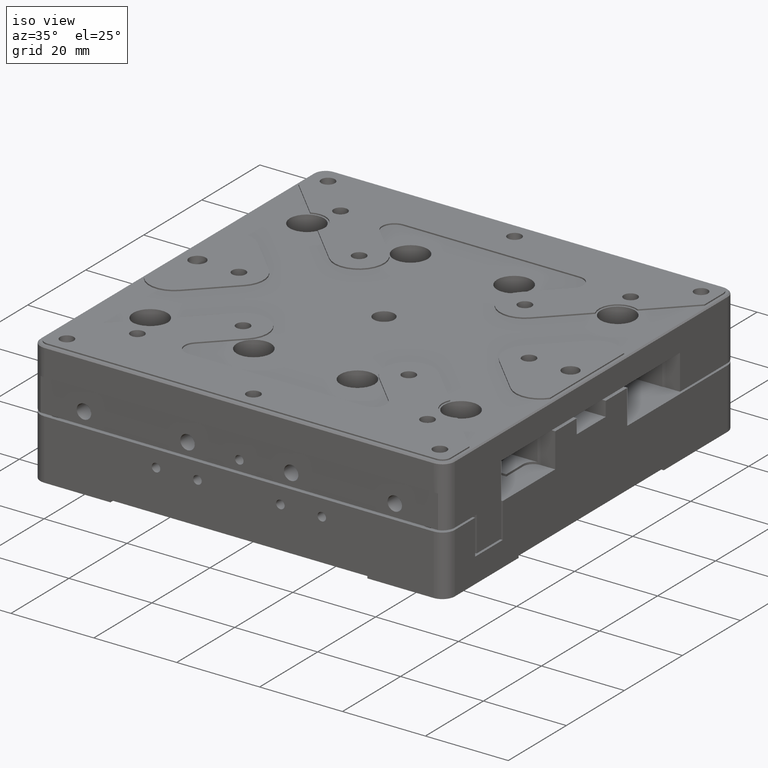
[diagram: clean part render]
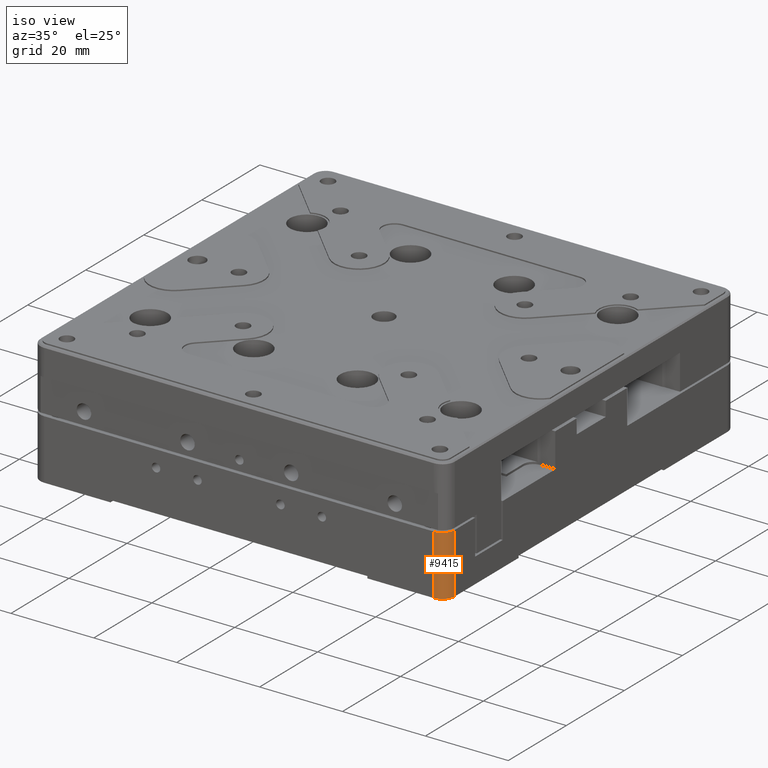
[diagram: same view with one face highlighted and labeled with its STEP entity id]
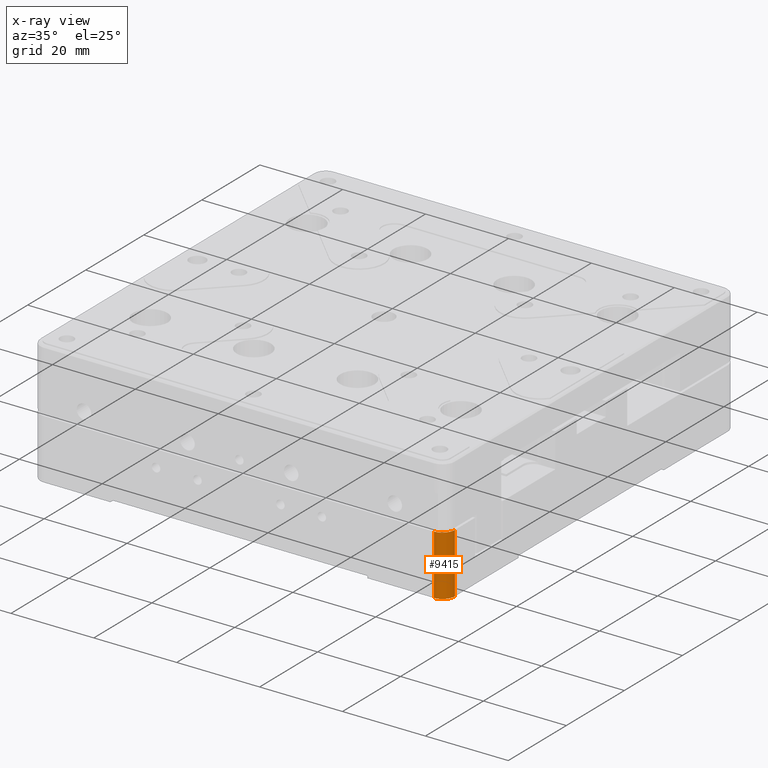
[diagram: x-ray of the same camera — body ghosted, the highlighted face saturated]
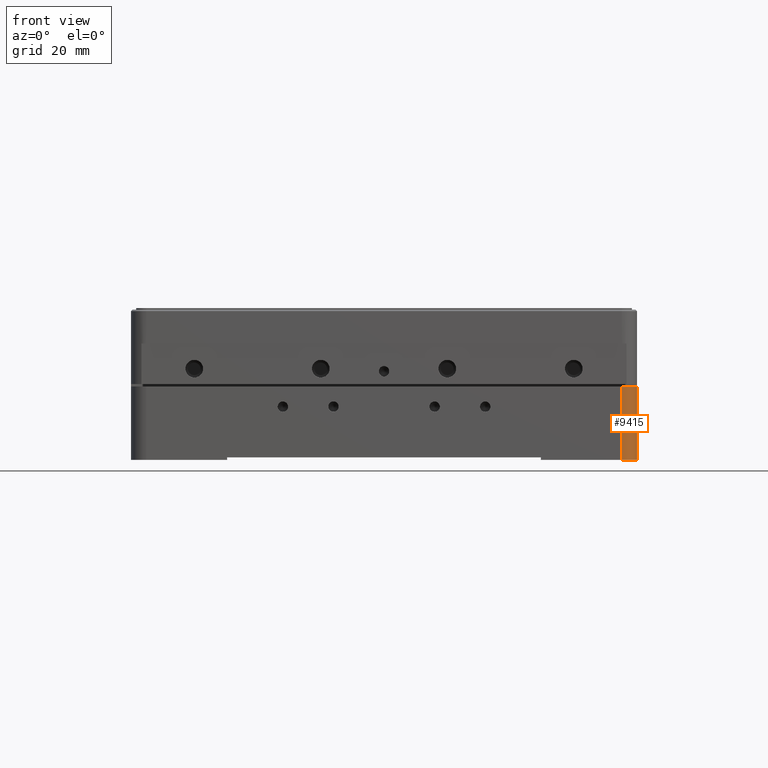
[diagram: same view with one face highlighted and labeled with its STEP entity id]
A machine part, iso view. The second image highlights one B-rep face of the part: STEP entity #9415.
The next image is the same camera in x-ray: the body ghosted, the highlighted face saturated — about 0% of this face is hidden behind the body in this view.
A second angle (front view) of the same face is appended — the face is thin or edge-on in the first view.
In plain terms, the highlighted cylindrical surface (edge-blend (fillet) strip) has radius 3 mm, axis along (0, 0, -1).
Its self-contained STEP definition (entity closure, byte-faithful):
#246 = VERTEX_POINT ( 'NONE', #11442 ) ;
#550 = CIRCLE ( 'NONE', #2385, 3.000000000000002665 ) ;
#1770 = EDGE_CURVE ( 'NONE', #6168, #10783, #12100, .T. ) ;
#2385 = AXIS2_PLACEMENT_3D ( 'NONE', #14309, #2960, #5366 ) ;
#2960 = DIRECTION ( 'NONE',  ( -0.000000000000000000, -0.000000000000000000, 1.000000000000000000 ) ) ;
#3428 = VECTOR ( 'NONE', #6328, 1000.000000000000000 ) ;
#3430 = ORIENTED_EDGE ( 'NONE', *, *, #1770, .F. ) ;
#4450 = ORIENTED_EDGE ( 'NONE', *, *, #9154, .F. ) ;
#4929 = CARTESIAN_POINT ( 'NONE',  ( 47.00000000000000000, -47.00000000000000000, 38.02208000000000965 ) ) ;
#5039 = CARTESIAN_POINT ( 'NONE',  ( 47.00000000000000000, -50.00000000000000000, -14.49999999999999822 ) ) ;
#5205 = ORIENTED_EDGE ( 'NONE', *, *, #15540, .F. ) ;
#5366 = DIRECTION ( 'NONE',  ( -1.000000000000000000, 0.000000000000000000, 0.000000000000000000 ) ) ;
#5765 = DIRECTION ( 'NONE',  ( -1.000000000000000000, 0.000000000000000000, 0.000000000000000000 ) ) ;
#5920 = FACE_OUTER_BOUND ( 'NONE', #15753, .T. ) ;
#6010 = DIRECTION ( 'NONE',  ( -1.000000000000000000, 0.000000000000000000, 0.000000000000000000 ) ) ;
#6168 = VERTEX_POINT ( 'NONE', #5039 ) ;
#6328 = DIRECTION ( 'NONE',  ( 0.000000000000000000, 0.000000000000000000, -1.000000000000000000 ) ) ;
#6783 = CARTESIAN_POINT ( 'NONE',  ( 50.00000000000000000, -47.00000000000000000, -14.49999999999999822 ) ) ;
#7139 = CIRCLE ( 'NONE', #13220, 3.000000000000002665 ) ;
#7304 = DIRECTION ( 'NONE',  ( -0.000000000000000000, 0.000000000000000000, 1.000000000000000000 ) ) ;
#7409 = CARTESIAN_POINT ( 'NONE',  ( 50.00000000000000000, -47.00000000000000000, 0.000000000000000000 ) ) ;
#7848 = VECTOR ( 'NONE', #7304, 1000.000000000000000 ) ;
#9044 = EDGE_CURVE ( 'NONE', #6168, #11530, #550, .T. ) ;
#9154 = EDGE_CURVE ( 'NONE', #10783, #246, #7139, .T. ) ;
#9415 = ADVANCED_FACE ( 'NONE', ( #5920 ), #10970, .T. ) ;
#9977 = DIRECTION ( 'NONE',  ( 0.000000000000000000, 0.000000000000000000, -1.000000000000000000 ) ) ;
#10480 = CARTESIAN_POINT ( 'NONE',  ( 47.00000000000000000, -50.00000000000000000, 0.000000000000000000 ) ) ;
#10783 = VERTEX_POINT ( 'NONE', #11024 ) ;
#10970 = CYLINDRICAL_SURFACE ( 'NONE', #15034, 3.000000000000002665 ) ;
#11024 = CARTESIAN_POINT ( 'NONE',  ( 47.00000000000000000, -50.00000000000000000, 0.000000000000000000 ) ) ;
#11442 = CARTESIAN_POINT ( 'NONE',  ( 50.00000000000000000, -47.00000000000000000, 0.000000000000000000 ) ) ;
#11530 = VERTEX_POINT ( 'NONE', #6783 ) ;
#12100 = LINE ( 'NONE', #10480, #7848 ) ;
#12615 = LINE ( 'NONE', #7409, #3428 ) ;
#13135 = DIRECTION ( 'NONE',  ( -0.000000000000000000, -0.000000000000000000, 1.000000000000000000 ) ) ;
#13220 = AXIS2_PLACEMENT_3D ( 'NONE', #15779, #13135, #5765 ) ;
#14309 = CARTESIAN_POINT ( 'NONE',  ( 47.00000000000000000, -47.00000000000000000, -14.49999999999999822 ) ) ;
#15034 = AXIS2_PLACEMENT_3D ( 'NONE', #4929, #9977, #6010 ) ;
#15540 = EDGE_CURVE ( 'NONE', #246, #11530, #12615, .T. ) ;
#15753 = EDGE_LOOP ( 'NONE', ( #3430, #16176, #5205, #4450 ) ) ;
#15779 = CARTESIAN_POINT ( 'NONE',  ( 47.00000000000000000, -47.00000000000000000, 0.000000000000000000 ) ) ;
#16176 = ORIENTED_EDGE ( 'NONE', *, *, #9044, .T. ) ;